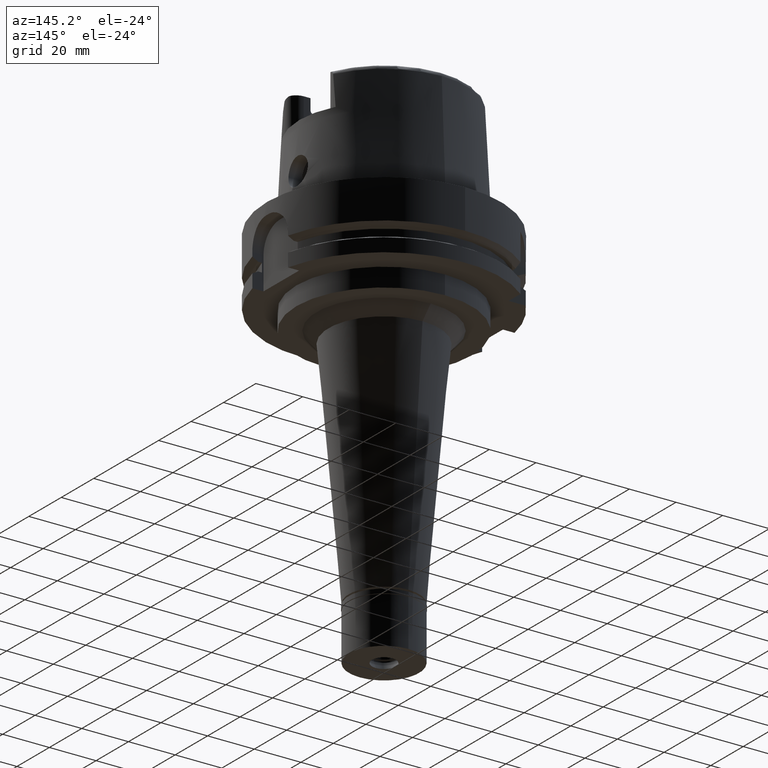
[diagram: clean part render]
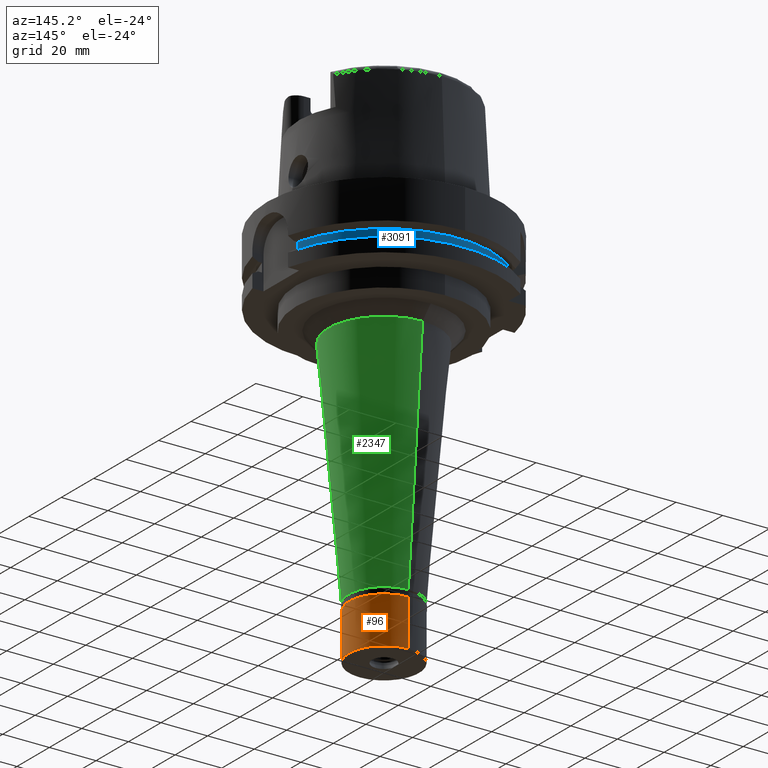
[diagram: same view with three faces highlighted in distinct colors, each labeled with its STEP entity id]
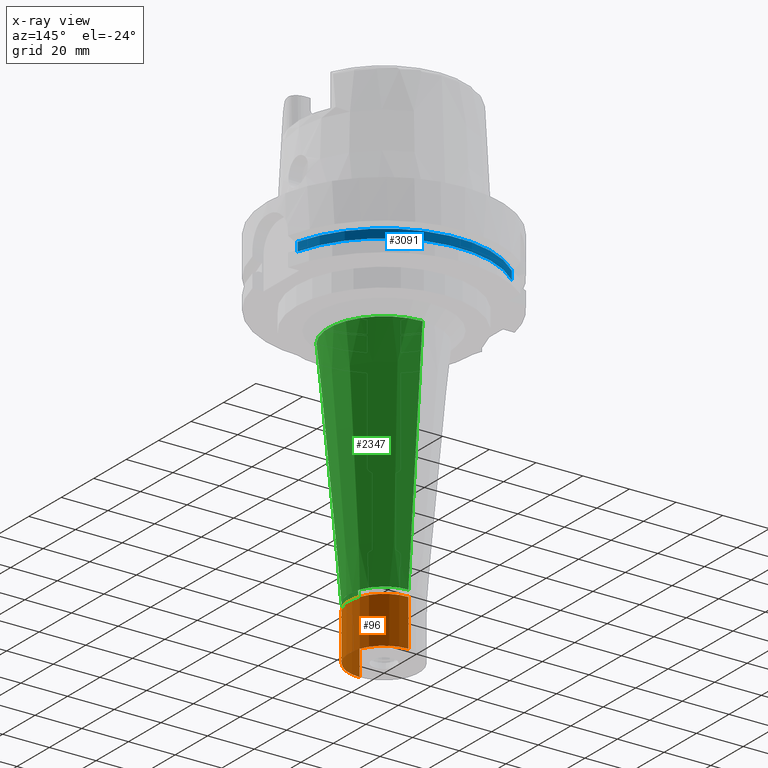
[diagram: x-ray of the same camera — body ghosted, the three highlighted faces saturated]
A machine part, auxiliary view with three faces highlighted in distinct colors.
The next image is the same camera in x-ray (body ghosted, the three faces saturated) — at least one of them is partly hidden behind the body in this view.
Their STEP definitions:

[orange] entity #96 — the highlighted cylindrical surface (partial cylindrical patch) has radius 15 mm, axis along (0, 0, -1).
#89 = EDGE_CURVE ( 'NONE', #1123, #5151, #3094, .T. ) ;
#96 = ADVANCED_FACE ( 'NONE', ( #3382 ), #5457, .T. ) ;
#175 = DIRECTION ( 'NONE',  ( 0.0000000000000000000, 0.0000000000000000000, -1.000000000000000000 ) ) ;
#245 = VECTOR ( 'NONE', #175, 1000.000000000000000 ) ;
#513 = ORIENTED_EDGE ( 'NONE', *, *, #89, .T. ) ;
#636 = AXIS2_PLACEMENT_3D ( 'NONE', #1386, #3940, #1434 ) ;
#643 = AXIS2_PLACEMENT_3D ( 'NONE', #5100, #1283, #2137 ) ;
#675 = CARTESIAN_POINT ( 'NONE',  ( 0.0000000000000000000, 15.00000000000000000, -22.00000000000000000 ) ) ;
#719 = EDGE_LOOP ( 'NONE', ( #4993, #2438, #513, #4002 ) ) ;
#1094 = DIRECTION ( 'NONE',  ( 0.0000000000000000000, 0.0000000000000000000, -1.000000000000000000 ) ) ;
#1123 = VERTEX_POINT ( 'NONE', #2492 ) ;
#1283 = DIRECTION ( 'NONE',  ( 0.0000000000000000000, 0.0000000000000000000, -1.000000000000000000 ) ) ;
#1386 = CARTESIAN_POINT ( 'NONE',  ( 0.0000000000000000000, 0.0000000000000000000, -2.000000000000000000 ) ) ;
#1434 = DIRECTION ( 'NONE',  ( 0.0000000000000000000, 1.000000000000000000, 0.0000000000000000000 ) ) ;
#1607 = VERTEX_POINT ( 'NONE', #4760 ) ;
#1728 = EDGE_CURVE ( 'NONE', #2313, #1607, #3373, .T. ) ;
#2137 = DIRECTION ( 'NONE',  ( 0.0000000000000000000, -1.000000000000000000, 0.0000000000000000000 ) ) ;
#2165 = CARTESIAN_POINT ( 'NONE',  ( 0.0000000000000000000, 0.0000000000000000000, -22.00000000000000000 ) ) ;
#2313 = VERTEX_POINT ( 'NONE', #3075 ) ;
#2438 = ORIENTED_EDGE ( 'NONE', *, *, #2910, .T. ) ;
#2479 = LINE ( 'NONE', #3336, #4488 ) ;
#2492 = CARTESIAN_POINT ( 'NONE',  ( 0.0000000000000000000, -15.00000000000000000, -22.00000000000000000 ) ) ;
#2540 = AXIS2_PLACEMENT_3D ( 'NONE', #2165, #5069, #2918 ) ;
#2910 = EDGE_CURVE ( 'NONE', #1607, #1123, #2479, .T. ) ;
#2918 = DIRECTION ( 'NONE',  ( 0.0000000000000000000, -1.000000000000000000, 0.0000000000000000000 ) ) ;
#3075 = CARTESIAN_POINT ( 'NONE',  ( 0.0000000000000000000, 15.00000000000000000, -2.000000000000000000 ) ) ;
#3094 = CIRCLE ( 'NONE', #2540, 15.00000000000000000 ) ;
#3336 = CARTESIAN_POINT ( 'NONE',  ( 0.0000000000000000000, -15.00000000000000000, -2.000000000000000000 ) ) ;
#3373 = CIRCLE ( 'NONE', #636, 15.00000000000000000 ) ;
#3382 = FACE_OUTER_BOUND ( 'NONE', #719, .T. ) ;
#3940 = DIRECTION ( 'NONE',  ( 0.0000000000000000000, 0.0000000000000000000, -1.000000000000000000 ) ) ;
#4002 = ORIENTED_EDGE ( 'NONE', *, *, #4031, .F. ) ;
#4031 = EDGE_CURVE ( 'NONE', #2313, #5151, #4479, .T. ) ;
#4479 = LINE ( 'NONE', #4931, #245 ) ;
#4488 = VECTOR ( 'NONE', #1094, 1000.000000000000000 ) ;
#4760 = CARTESIAN_POINT ( 'NONE',  ( 0.0000000000000000000, -15.00000000000000000, -2.000000000000000000 ) ) ;
#4931 = CARTESIAN_POINT ( 'NONE',  ( 0.0000000000000000000, 15.00000000000000000, -2.000000000000000000 ) ) ;
#4993 = ORIENTED_EDGE ( 'NONE', *, *, #1728, .T. ) ;
#5069 = DIRECTION ( 'NONE',  ( 0.0000000000000000000, 0.0000000000000000000, 1.000000000000000000 ) ) ;
#5100 = CARTESIAN_POINT ( 'NONE',  ( 0.0000000000000000000, 0.0000000000000000000, 0.0000000000000000000 ) ) ;
#5151 = VERTEX_POINT ( 'NONE', #675 ) ;
#5457 = CYLINDRICAL_SURFACE ( 'NONE', #643, 15.00000000000000000 ) ;

[blue] entity #3091 — the highlighted cylindrical surface (partial cylindrical patch) has radius 46 mm, axis along (0, 0, 1).
#775 = ORIENTED_EDGE ( 'NONE', *, *, #3604, .T. ) ;
#785 = ORIENTED_EDGE ( 'NONE', *, *, #4678, .T. ) ;
#1071 = CARTESIAN_POINT ( 'NONE',  ( 44.66542286825000474, 11.00000000000000000, -21.87500000000000000 ) ) ;
#1148 = AXIS2_PLACEMENT_3D ( 'NONE', #5359, #1892, #5410 ) ;
#1333 = CARTESIAN_POINT ( 'NONE',  ( 0.0000000000000000000, 0.0000000000000000000, -168.7150000000000034 ) ) ;
#1339 = AXIS2_PLACEMENT_3D ( 'NONE', #1333, #2180, #2206 ) ;
#1355 = CARTESIAN_POINT ( 'NONE',  ( -31.50000000000000000, 33.52238058372000040, -18.12500000000000000 ) ) ;
#1532 = EDGE_LOOP ( 'NONE', ( #3439, #785, #3490, #775 ) ) ;
#1892 = DIRECTION ( 'NONE',  ( 0.0000000000000000000, 0.0000000000000000000, 1.000000000000000000 ) ) ;
#2128 = CARTESIAN_POINT ( 'NONE',  ( -31.50000000000000000, 33.52238058372000040, -18.12500000000000000 ) ) ;
#2180 = DIRECTION ( 'NONE',  ( 0.0000000000000000000, 0.0000000000000000000, 1.000000000000000000 ) ) ;
#2206 = DIRECTION ( 'NONE',  ( 0.0000000000000000000, 1.000000000000000000, 0.0000000000000000000 ) ) ;
#2280 = VERTEX_POINT ( 'NONE', #1355 ) ;
#2403 = DIRECTION ( 'NONE',  ( 0.0000000000000000000, 1.000000000000000000, 0.0000000000000000000 ) ) ;
#2406 = CIRCLE ( 'NONE', #1148, 46.00000000000000000 ) ;
#2419 = DIRECTION ( 'NONE',  ( 0.0000000000000000000, 0.0000000000000000000, 1.000000000000000000 ) ) ;
#2510 = DIRECTION ( 'NONE',  ( 0.0000000000000000000, 0.0000000000000000000, -1.000000000000000000 ) ) ;
#2647 = AXIS2_PLACEMENT_3D ( 'NONE', #3716, #4623, #2403 ) ;
#2978 = VERTEX_POINT ( 'NONE', #1071 ) ;
#3056 = FACE_OUTER_BOUND ( 'NONE', #1532, .T. ) ;
#3091 = ADVANCED_FACE ( 'NONE', ( #3056 ), #3489, .T. ) ;
#3308 = CARTESIAN_POINT ( 'NONE',  ( 44.66542286825000474, 11.00000000000000000, -18.12500000000000000 ) ) ;
#3310 = EDGE_CURVE ( 'NONE', #2978, #5147, #5474, .T. ) ;
#3439 = ORIENTED_EDGE ( 'NONE', *, *, #5265, .F. ) ;
#3489 = CYLINDRICAL_SURFACE ( 'NONE', #1339, 46.00000000000000000 ) ;
#3490 = ORIENTED_EDGE ( 'NONE', *, *, #3310, .F. ) ;
#3592 = VERTEX_POINT ( 'NONE', #4886 ) ;
#3604 = EDGE_CURVE ( 'NONE', #2978, #3592, #2406, .T. ) ;
#3716 = CARTESIAN_POINT ( 'NONE',  ( 0.0000000000000000000, 0.0000000000000000000, -18.12500000000000000 ) ) ;
#4199 = VECTOR ( 'NONE', #2510, 1000.000000000000000 ) ;
#4623 = DIRECTION ( 'NONE',  ( 0.0000000000000000000, 0.0000000000000000000, -1.000000000000000000 ) ) ;
#4678 = EDGE_CURVE ( 'NONE', #2280, #5147, #4910, .T. ) ;
#4679 = LINE ( 'NONE', #2128, #4199 ) ;
#4886 = CARTESIAN_POINT ( 'NONE',  ( -31.50000000000000000, 33.52238058372000040, -21.87500000000000000 ) ) ;
#4910 = CIRCLE ( 'NONE', #2647, 46.00000000000000000 ) ;
#4998 = CARTESIAN_POINT ( 'NONE',  ( 44.66542286825000474, 11.00000000000000000, -21.87500000000000000 ) ) ;
#5028 = VECTOR ( 'NONE', #2419, 1000.000000000000000 ) ;
#5147 = VERTEX_POINT ( 'NONE', #3308 ) ;
#5265 = EDGE_CURVE ( 'NONE', #2280, #3592, #4679, .T. ) ;
#5359 = CARTESIAN_POINT ( 'NONE',  ( 0.0000000000000000000, 0.0000000000000000000, -21.87500000000000000 ) ) ;
#5410 = DIRECTION ( 'NONE',  ( 0.9709874536577099979, 0.2391304347826024856, 0.0000000000000000000 ) ) ;
#5474 = LINE ( 'NONE', #4998, #5028 ) ;

[green] entity #2347 — the highlighted conical surface has half-angle 5 deg.
#269 = DIRECTION ( 'NONE',  ( 0.0000000000000000000, -1.000000000000000000, 0.0000000000000000000 ) ) ;
#352 = ORIENTED_EDGE ( 'NONE', *, *, #4505, .F. ) ;
#407 = DIRECTION ( 'NONE',  ( 0.0000000000000000000, 0.08715574274767391716, -0.9961946980917442129 ) ) ;
#436 = CARTESIAN_POINT ( 'NONE',  ( 0.0000000000000000000, -23.76636408530000111, -42.00000000000000000 ) ) ;
#498 = FACE_OUTER_BOUND ( 'NONE', #5378, .T. ) ;
#576 = CIRCLE ( 'NONE', #3840, 23.76636408530000111 ) ;
#773 = LINE ( 'NONE', #436, #3730 ) ;
#877 = CONICAL_SURFACE ( 'NONE', #3219, 19.38318204264999522, 0.08726646259969973729 ) ;
#905 = CARTESIAN_POINT ( 'NONE',  ( 0.0000000000000000000, -15.00000000000000000, -142.1999999999999886 ) ) ;
#1198 = EDGE_CURVE ( 'NONE', #4601, #5337, #773, .T. ) ;
#1296 = EDGE_CURVE ( 'NONE', #2902, #4985, #3556, .T. ) ;
#1455 = ORIENTED_EDGE ( 'NONE', *, *, #3715, .T. ) ;
#1646 = ORIENTED_EDGE ( 'NONE', *, *, #1198, .T. ) ;
#2002 = DIRECTION ( 'NONE',  ( 0.0000000000000000000, 0.0000000000000000000, 1.000000000000000000 ) ) ;
#2227 = DIRECTION ( 'NONE',  ( 0.0000000000000000000, 0.0000000000000000000, 1.000000000000000000 ) ) ;
#2291 = CARTESIAN_POINT ( 'NONE',  ( 0.0000000000000000000, 23.76636408530000111, -42.00000000000000000 ) ) ;
#2314 = AXIS2_PLACEMENT_3D ( 'NONE', #4149, #2002, #269 ) ;
#2347 = ADVANCED_FACE ( 'NONE', ( #498 ), #877, .T. ) ;
#2373 = DIRECTION ( 'NONE',  ( 0.0000000000000000000, -1.000000000000000000, 0.0000000000000000000 ) ) ;
#2902 = VERTEX_POINT ( 'NONE', #5000 ) ;
#3124 = DIRECTION ( 'NONE',  ( 0.0000000000000000000, 0.0000000000000000000, 1.000000000000000000 ) ) ;
#3219 = AXIS2_PLACEMENT_3D ( 'NONE', #3476, #2227, #5303 ) ;
#3476 = CARTESIAN_POINT ( 'NONE',  ( 0.0000000000000000000, 0.0000000000000000000, -92.09999999999999432 ) ) ;
#3531 = DIRECTION ( 'NONE',  ( 0.0000000000000000000, -0.08715574274767391716, -0.9961946980917442129 ) ) ;
#3556 = LINE ( 'NONE', #2291, #5350 ) ;
#3558 = ORIENTED_EDGE ( 'NONE', *, *, #1296, .F. ) ;
#3715 = EDGE_CURVE ( 'NONE', #5337, #4985, #4320, .T. ) ;
#3730 = VECTOR ( 'NONE', #407, 1000.000000000000000 ) ;
#3840 = AXIS2_PLACEMENT_3D ( 'NONE', #4528, #3124, #2373 ) ;
#4149 = CARTESIAN_POINT ( 'NONE',  ( 0.0000000000000000000, 0.0000000000000000000, -142.1999999999999886 ) ) ;
#4320 = CIRCLE ( 'NONE', #2314, 15.00000000000000000 ) ;
#4368 = CARTESIAN_POINT ( 'NONE',  ( 0.0000000000000000000, 15.00000000000000000, -142.1999999999999886 ) ) ;
#4505 = EDGE_CURVE ( 'NONE', #4601, #2902, #576, .T. ) ;
#4528 = CARTESIAN_POINT ( 'NONE',  ( 0.0000000000000000000, 0.0000000000000000000, -42.00000000000000000 ) ) ;
#4601 = VERTEX_POINT ( 'NONE', #4874 ) ;
#4874 = CARTESIAN_POINT ( 'NONE',  ( 0.0000000000000000000, -23.76636408530000111, -42.00000000000000000 ) ) ;
#4985 = VERTEX_POINT ( 'NONE', #4368 ) ;
#5000 = CARTESIAN_POINT ( 'NONE',  ( 0.0000000000000000000, 23.76636408530000111, -42.00000000000000000 ) ) ;
#5303 = DIRECTION ( 'NONE',  ( 0.0000000000000000000, 1.000000000000000000, 0.0000000000000000000 ) ) ;
#5337 = VERTEX_POINT ( 'NONE', #905 ) ;
#5350 = VECTOR ( 'NONE', #3531, 1000.000000000000000 ) ;
#5378 = EDGE_LOOP ( 'NONE', ( #352, #1646, #1455, #3558 ) ) ;